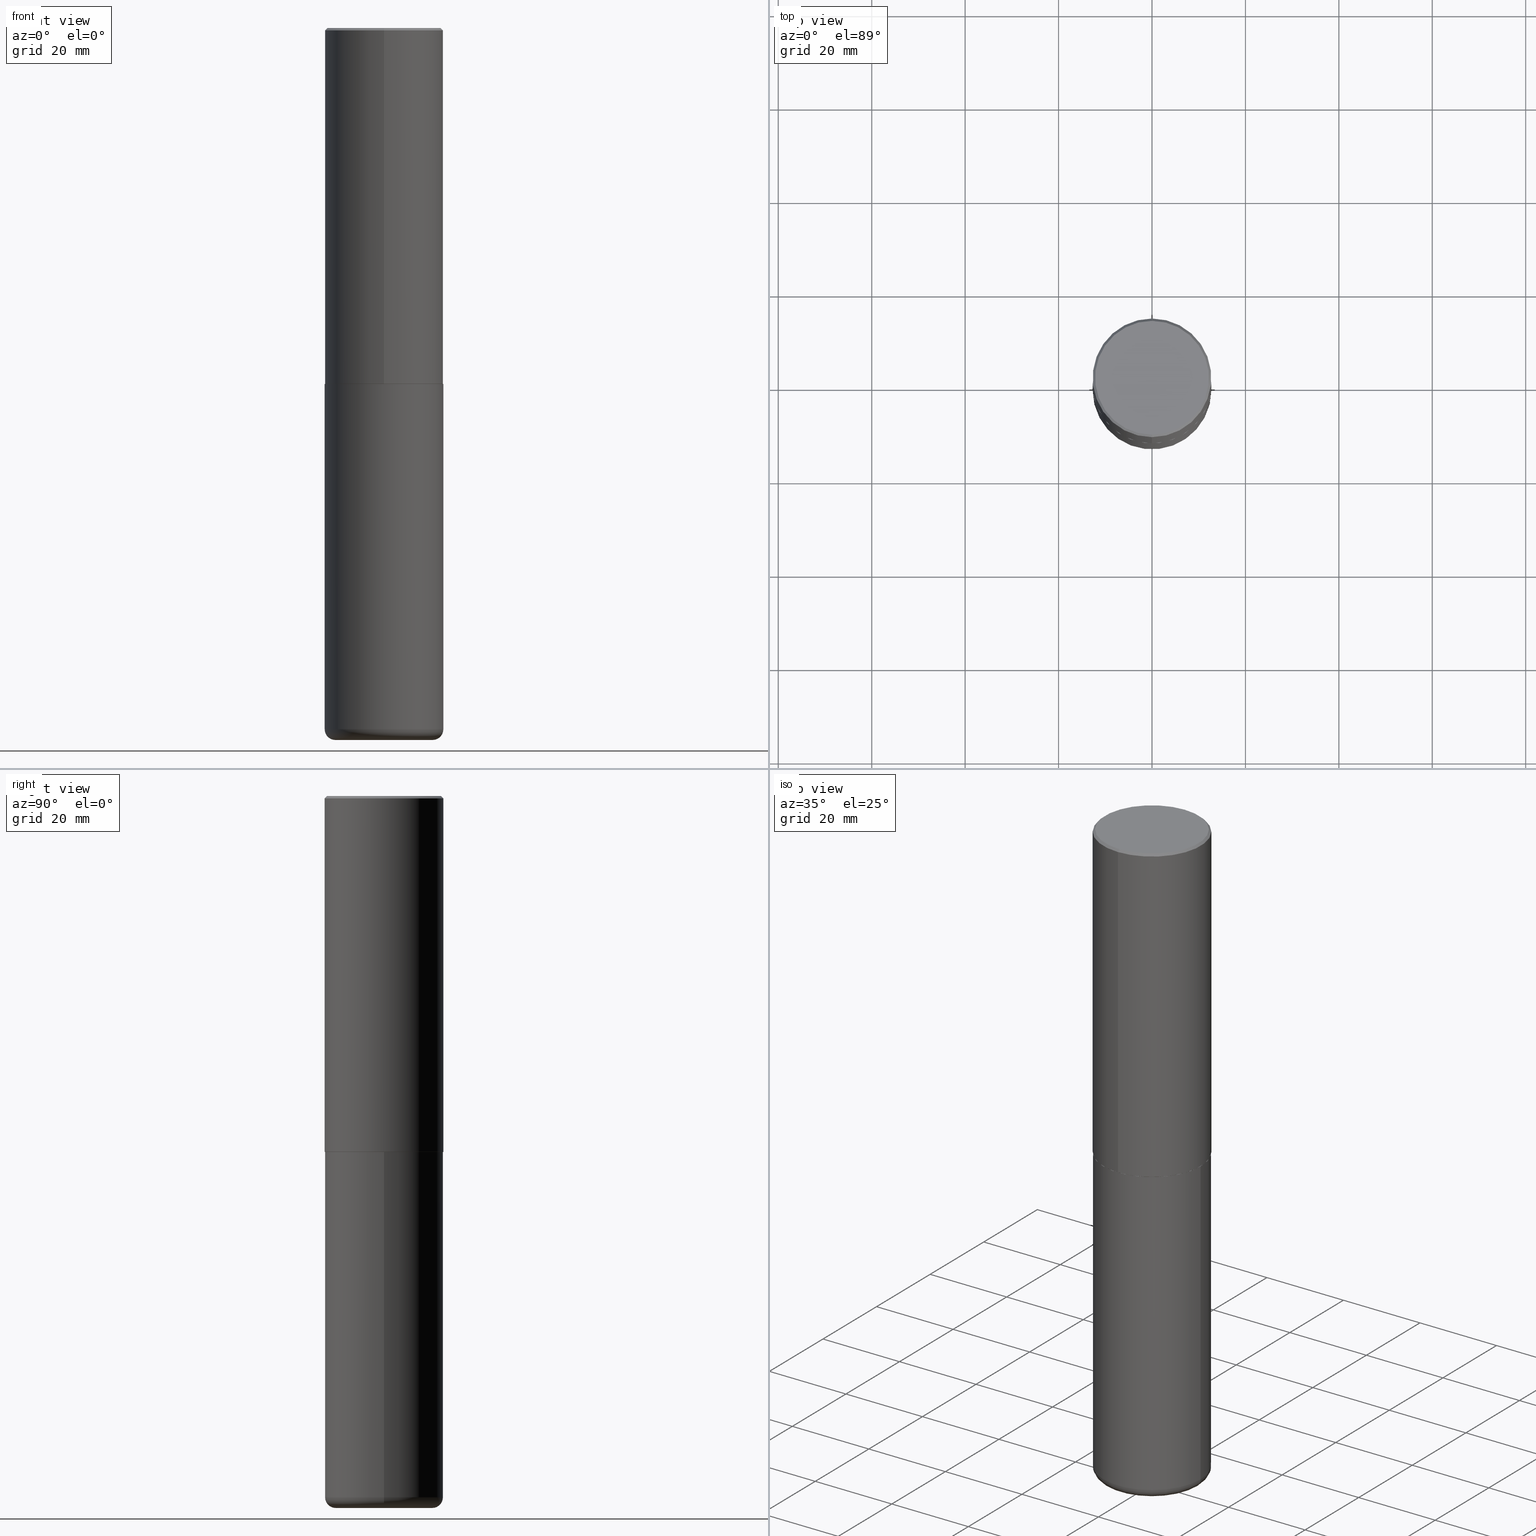
[diagram: canonical four-view strip — front | top / right | iso, engineering-drawing reading convention]
A machine part, canonical four-view strip (front | top / right | iso — engineering-drawing reading convention). The complete STEP part file that produces these views, byte-faithful:
ISO-10303-21;
HEADER;
FILE_DESCRIPTION (( 'STEP AP203' ),
    '1' );
FILE_NAME ('37725.STEP',
    '2024-03-02T09:27:18',
    ( '' ),
    ( '' ),
    'SwSTEP 2.0',
    'SolidWorks 2023',
    '' );
FILE_SCHEMA (( 'CONFIG_CONTROL_DESIGN' ));
ENDSEC;

DATA;
#1 = PERSON_AND_ORGANIZATION ( #269, #66 ) ;
#2 = PLANE ( 'NONE',  #258 ) ;
#3 = AXIS2_PLACEMENT_3D ( 'NONE', #388, #414, #418 ) ;
#4 = CIRCLE ( 'NONE', #352, 0.4799999999999999267 ) ;
#5 = DIRECTION ( 'NONE',  ( -6.982962677686265922E-15, -1.000000000000000000, 3.284787166730577015E-15 ) ) ;
#6 = EDGE_CURVE ( 'NONE', #122, #402, #61, .T. ) ;
#7 = DIRECTION ( 'NONE',  ( -2.444898033699712212E-29, 3.492298717528625990E-15, 1.000000000000000000 ) ) ;
#8 = DIRECTION ( 'NONE',  ( -2.444898033699712212E-29, 3.492298717528625990E-15, 1.000000000000000000 ) ) ;
#9 = APPROVAL ( #351, 'UNSPECIFIED' ) ;
#10 = AXIS2_PLACEMENT_3D ( 'NONE', #385, #294, #347 ) ;
#11 = DIRECTION ( 'NONE',  ( 6.982962677686265922E-15, 1.000000000000000000, -3.492298717528626385E-15 ) ) ;
#12 = LOCAL_TIME ( 4, 27, 18.00000000000000000, #191 ) ;
#13 = CARTESIAN_POINT ( 'NONE',  ( -0.4099999999999999756, -1.772142949594657767E-14, -5.910000000000000142 ) ) ;
#14 = LINE ( 'NONE', #107, #204 ) ;
#15 = CC_DESIGN_PERSON_AND_ORGANIZATION_ASSIGNMENT ( #183, #315, ( #247 ) ) ;
#16 = APPLICATION_PROTOCOL_DEFINITION ( 'international standard', 'config_control_design', 1994, #175 ) ;
#17 = CIRCLE ( 'NONE', #236, 0.4099999999999999756 ) ;
#18 = ORIENTED_EDGE ( 'NONE', *, *, #158, .T. ) ;
#19 = CIRCLE ( 'NONE', #259, 0.5000000000000000000 ) ;
#20 = DIRECTION ( 'NONE',  ( -2.445468806185136877E-29, 3.491481338843145188E-15, 1.000000000000000000 ) ) ;
#21 = ORIENTED_EDGE ( 'NONE', *, *, #368, .F. ) ;
#22 = EDGE_LOOP ( 'NONE', ( #240, #249, #211, #210 ) ) ;
#23 = ORIENTED_EDGE ( 'NONE', *, *, #138, .T. ) ;
#24 = APPROVAL_PERSON_ORGANIZATION ( #307, #9, #31 ) ;
#25 = CARTESIAN_POINT ( 'NONE',  ( 3.491481338843133355E-15, 0.4999999999999999445, -0.02000000000000185310 ) ) ;
#26 = ORIENTED_EDGE ( 'NONE', *, *, #231, .F. ) ;
#27 = DIRECTION ( 'NONE',  ( 1.000000000000000000, -6.982962677686266711E-15, 0.000000000000000000 ) ) ;
#28 = EDGE_CURVE ( 'NONE', #376, #152, #300, .T. ) ;
#29 = APPROVAL_ROLE ( '' ) ;
#30 = CARTESIAN_POINT ( 'NONE',  ( 4.889796067399450837E-31, -6.984597435057287381E-17, -0.02000000000000010797 ) ) ;
#31 = APPROVAL_ROLE ( '' ) ;
#32 = DIRECTION ( 'NONE',  ( -6.982962677686265922E-15, -1.000000000000000000, 3.491643216902136408E-15 ) ) ;
#33 = PERSON_AND_ORGANIZATION_ROLE ( 'creator' ) ;
#34 = DIRECTION ( 'NONE',  ( -2.444898033699712212E-29, 3.492298717528625990E-15, 1.000000000000000000 ) ) ;
#35 = EDGE_CURVE ( 'NONE', #118, #196, #252, .T. ) ;
#36 = SECURITY_CLASSIFICATION_LEVEL ( 'unclassified' ) ;
#37 = CARTESIAN_POINT ( 'NONE',  ( 3.421651712066270057E-15, 0.4799999999999999267, -1.573466742882299844E-15 ) ) ;
#38 = CIRCLE ( 'NONE', #320, 0.09000000000000020484 ) ;
#39 = DIRECTION ( 'NONE',  ( -6.982962677686266711E-15, -1.000000000000000000, 3.278217592397114284E-15 ) ) ;
#40 = DIRECTION ( 'NONE',  ( -6.982962677686266711E-15, -1.000000000000000000, 3.278217592397114284E-15 ) ) ;
#41 = APPROVAL ( #386, 'UNSPECIFIED' ) ;
#42 = CARTESIAN_POINT ( 'NONE',  ( -3.430248998885764992E-15, -0.5000000000000001110, -0.01999999999999835937 ) ) ;
#43 = AXIS2_PLACEMENT_3D ( 'NONE', #132, #220, #5 ) ;
#44 = DIRECTION ( 'NONE',  ( -4.937700262165728178E-15, -0.7071067811867141062, 0.7071067811863809283 ) ) ;
#45 = LOCAL_TIME ( 4, 27, 18.00000000000000000, #215 ) ;
#46 = CARTESIAN_POINT ( 'NONE',  ( 7.336406418555409790E-29, -1.047444401652943635E-14, -3.000000000000000444 ) ) ;
#47 = UNCERTAINTY_MEASURE_WITH_UNIT (LENGTH_MEASURE( 1.000000000000000082E-05 ), #54, 'distance_accuracy_value', 'NONE');
#48 = EDGE_LOOP ( 'NONE', ( #113, #93, #274, #276 ) ) ;
#49 = CARTESIAN_POINT ( 'NONE',  ( 0.000000000000000000, 0.000000000000000000, 0.000000000000000000 ) ) ;
#50 = CIRCLE ( 'NONE', #380, 0.4799999999999999267 ) ;
#51 = ORIENTED_EDGE ( 'NONE', *, *, #327, .F. ) ;
#52 = APPROVAL_PERSON_ORGANIZATION ( #251, #41, #29 ) ;
#53 = ORIENTED_EDGE ( 'NONE', *, *, #6, .F. ) ;
#54 =( CONVERSION_BASED_UNIT ( 'INCH', #88 ) LENGTH_UNIT ( ) NAMED_UNIT ( #397 ) );
#55 = VERTEX_POINT ( 'NONE', #253 ) ;
#56 = DIRECTION ( 'NONE',  ( -2.444898033699712212E-29, 3.492298717528625990E-15, 1.000000000000000000 ) ) ;
#57 = VERTEX_POINT ( 'NONE', #256 ) ;
#58 = AXIS2_PLACEMENT_3D ( 'NONE', #255, #265, #167 ) ;
#59 = CIRCLE ( 'NONE', #271, 0.4989999999999999991 ) ;
#60 = PERSON_AND_ORGANIZATION ( #269, #66 ) ;
#61 = LINE ( 'NONE', #224, #345 ) ;
#62 = SHAPE_DEFINITION_REPRESENTATION ( #370, #306 ) ;
#63 = CARTESIAN_POINT ( 'NONE',  ( 0.4099999999999999756, -2.381190273091024584E-14, -6.000000000000000888 ) ) ;
#64 = DIRECTION ( 'NONE',  ( -2.444898033699711371E-29, 3.492298717528626385E-15, 1.000000000000000000 ) ) ;
#65 = CONICAL_SURFACE ( 'NONE', #78, 0.4989999999999999991, 0.7853981633976873100 ) ;
#66 = ORGANIZATION ( 'UNSPECIFIED', 'UNSPECIFIED', '' ) ;
#67 = PERSON_AND_ORGANIZATION ( #269, #66 ) ;
#68 = DIRECTION ( 'NONE',  ( -2.445468806185136597E-29, 3.491481338843145583E-15, 1.000000000000000000 ) ) ;
#69 = ADVANCED_FACE ( 'NONE', ( #70 ), #97, .T. ) ;
#70 = FACE_OUTER_BOUND ( 'NONE', #208, .T. ) ;
#71 = DIRECTION ( 'NONE',  ( -2.444898033699712212E-29, 3.492298717528625990E-15, 1.000000000000000000 ) ) ;
#72 = CIRCLE ( 'NONE', #286, 0.5000000000000000000 ) ;
#73 = LOCAL_TIME ( 4, 27, 18.00000000000000000, #292 ) ;
#74 = ADVANCED_FACE ( 'NONE', ( #222 ), #2, .F. ) ;
#75 = DIRECTION ( 'NONE',  ( -2.444898033699712212E-29, 3.492298717528625990E-15, 1.000000000000000000 ) ) ;
#76 = FACE_OUTER_BOUND ( 'NONE', #146, .T. ) ;
#77 = FACE_OUTER_BOUND ( 'NONE', #344, .T. ) ;
#78 = AXIS2_PLACEMENT_3D ( 'NONE', #357, #296, #392 ) ;
#79 = DIRECTION ( 'NONE',  ( 1.000000000000000000, -6.982962677686266711E-15, 0.000000000000000000 ) ) ;
#80 = SECURITY_CLASSIFICATION ( '', '', #36 ) ;
#81 = DIRECTION ( 'NONE',  ( 1.000000000000000000, -6.982962677686268288E-15, 4.883557194083113462E-29 ) ) ;
#82 = LINE ( 'NONE', #398, #329 ) ;
#83 = VERTEX_POINT ( 'NONE', #349 ) ;
#84 = APPLICATION_CONTEXT ( 'configuration controlled 3d designs of mechanical parts and assemblies' ) ;
#85 = CARTESIAN_POINT ( 'NONE',  ( 1.445272064455415567E-28, -2.063465471256298944E-14, -5.910000000000000142 ) ) ;
#86 = EDGE_CURVE ( 'NONE', #57, #281, #229, .T. ) ;
#87 = ORIENTED_EDGE ( 'NONE', *, *, #415, .T. ) ;
#88 = LENGTH_MEASURE_WITH_UNIT ( LENGTH_MEASURE( 0.02539999999999999897 ), #278 );
#89 = ORIENTED_EDGE ( 'NONE', *, *, #291, .F. ) ;
#90 = DIRECTION ( 'NONE',  ( 0.000000000000000000, 0.000000000000000000, 1.000000000000000000 ) ) ;
#91 = VERTEX_POINT ( 'NONE', #284 ) ;
#92 = EDGE_CURVE ( 'NONE', #402, #144, #387, .T. ) ;
#93 = ORIENTED_EDGE ( 'NONE', *, *, #327, .T. ) ;
#94 = VECTOR ( 'NONE', #309, 39.37007874015748143 ) ;
#95 = COORDINATED_UNIVERSAL_TIME_OFFSET ( 5, 0, .BEHIND. ) ;
#96 = FACE_OUTER_BOUND ( 'NONE', #242, .T. ) ;
#97 = CYLINDRICAL_SURFACE ( 'NONE', #193, 0.5000000000000000000 ) ;
#98 = DATE_AND_TIME ( #280, #73 ) ;
#99 = ORIENTED_EDGE ( 'NONE', *, *, #333, .F. ) ;
#100 = ADVANCED_FACE ( 'NONE', ( #130 ), #209, .T. ) ;
#101 = AXIS2_PLACEMENT_3D ( 'NONE', #30, #34, #32 ) ;
#102 = ORIENTED_EDGE ( 'NONE', *, *, #168, .T. ) ;
#103 = CARTESIAN_POINT ( 'NONE',  ( 3.552713678800501718E-15, 0.5000000000000001110, -1.746149358764313390E-15 ) ) ;
#104 = DIRECTION ( 'NONE',  ( 2.444898033699712212E-29, -3.492298717528625990E-15, -1.000000000000000000 ) ) ;
#105 = CC_DESIGN_APPROVAL ( #41, ( #80 ) ) ;
#106 = DIRECTION ( 'NONE',  ( 6.982962677686265922E-15, 1.000000000000000000, -3.491643216902136408E-15 ) ) ;
#107 = CARTESIAN_POINT ( 'NONE',  ( 0.5000000000000000000, -3.491481338843133355E-15, 2.438088387897967896E-29 ) ) ;
#108 = DIRECTION ( 'NONE',  ( -6.982962677686265922E-15, -1.000000000000000000, 3.492298717528625990E-15 ) ) ;
#109 = CC_DESIGN_PERSON_AND_ORGANIZATION_ASSIGNMENT ( #195, #325, ( #305 ) ) ;
#110 = AXIS2_PLACEMENT_3D ( 'NONE', #321, #384, #27 ) ;
#111 = CONICAL_SURFACE ( 'NONE', #157, 0.4989999999999999991, 0.7853981633976873100 ) ;
#112 = CARTESIAN_POINT ( 'NONE',  ( 4.889796067399450837E-31, -6.984597435057287381E-17, -0.02000000000000010797 ) ) ;
#113 = ORIENTED_EDGE ( 'NONE', *, *, #314, .T. ) ;
#114 = CC_DESIGN_PERSON_AND_ORGANIZATION_ASSIGNMENT ( #382, #285, ( #182 ) ) ;
#115 = CARTESIAN_POINT ( 'NONE',  ( 1.445272064455415567E-28, -2.063465471256298944E-14, -5.910000000000000142 ) ) ;
#116 = ORIENTED_EDGE ( 'NONE', *, *, #291, .T. ) ;
#117 = DIRECTION ( 'NONE',  ( -4.851104656540946131E-15, -0.7071067811865473507, -0.7071067811865476838 ) ) ;
#118 = VERTEX_POINT ( 'NONE', #63 ) ;
#119 = AXIS2_PLACEMENT_3D ( 'NONE', #85, #245, #81 ) ;
#120 = ORIENTED_EDGE ( 'NONE', *, *, #338, .F. ) ;
#121 = ADVANCED_FACE ( 'NONE', ( #326 ), #353, .T. ) ;
#122 = VERTEX_POINT ( 'NONE', #37 ) ;
#123 = CALENDAR_DATE ( 2024, 2, 3 ) ;
#124 = ORIENTED_EDGE ( 'NONE', *, *, #246, .T. ) ;
#125 = CC_DESIGN_APPROVAL ( #378, ( #305 ) ) ;
#126 = DIRECTION ( 'NONE',  ( -2.445468806185136597E-29, 3.491481338843145583E-15, 1.000000000000000000 ) ) ;
#127 = ADVANCED_FACE ( 'NONE', ( #96 ), #163, .T. ) ;
#128 = FACE_OUTER_BOUND ( 'NONE', #22, .T. ) ;
#129 = APPROVAL_ROLE ( '' ) ;
#130 = FACE_OUTER_BOUND ( 'NONE', #377, .T. ) ;
#131 = AXIS2_PLACEMENT_3D ( 'NONE', #267, #330, #40 ) ;
#132 = CARTESIAN_POINT ( 'NONE',  ( 7.334694101099137475E-29, -1.047689615258587837E-14, -3.000000000000000444 ) ) ;
#133 = EDGE_CURVE ( 'NONE', #83, #390, #366, .T. ) ;
#134 = CARTESIAN_POINT ( 'NONE',  ( 1.467281283711081958E-28, -2.094888803305887271E-14, -6.000000000000000888 ) ) ;
#135 = CARTESIAN_POINT ( 'NONE',  ( 3.351822085289407153E-15, 0.4799999999999999267, -1.624885063648019971E-15 ) ) ;
#136 = AXIS2_PLACEMENT_3D ( 'NONE', #165, #104, #106 ) ;
#137 = PLANE ( 'NONE',  #156 ) ;
#138 = EDGE_CURVE ( 'NONE', #196, #118, #17, .T. ) ;
#139 = DIRECTION ( 'NONE',  ( -1.000000000000000000, 6.982962677686265922E-15, -4.876176775795935793E-29 ) ) ;
#140 = DIRECTION ( 'NONE',  ( 2.444898033699711371E-29, -3.492298717528626385E-15, -1.000000000000000000 ) ) ;
#141 = VERTEX_POINT ( 'NONE', #288 ) ;
#142 = ADVANCED_FACE ( 'NONE', ( #128 ), #164, .T. ) ;
#143 = DIRECTION ( 'NONE',  ( -2.444898033699712212E-29, 3.492298717528625990E-15, 1.000000000000000000 ) ) ;
#144 = VERTEX_POINT ( 'NONE', #42 ) ;
#145 = DIRECTION ( 'NONE',  ( -1.000000000000000000, 6.982962677686265922E-15, -4.876176775795935793E-29 ) ) ;
#146 = EDGE_LOOP ( 'NONE', ( #102, #250 ) ) ;
#147 = DIRECTION ( 'NONE',  ( 1.000000000000000000, -6.982962677686262766E-15, 0.000000000000000000 ) ) ;
#148 = VECTOR ( 'NONE', #171, 39.37007874015748143 ) ;
#149 = EDGE_LOOP ( 'NONE', ( #339, #362 ) ) ;
#150 = CARTESIAN_POINT ( 'NONE',  ( 3.545608251442972496E-15, 0.4989999999999895630, -3.000000000000001776 ) ) ;
#151 = PRODUCT_RELATED_PRODUCT_CATEGORY ( 'detail', '', ( #247 ) ) ;
#152 = VERTEX_POINT ( 'NONE', #200 ) ;
#153 = APPROVAL_DATE_TIME ( #98, #9 ) ;
#154 = DIRECTION ( 'NONE',  ( 1.000000000000000000, -6.982962677686271444E-15, 0.000000000000000000 ) ) ;
#155 = DIRECTION ( 'NONE',  ( -2.445468806185136597E-29, 3.491481338843145583E-15, 1.000000000000000000 ) ) ;
#156 = AXIS2_PLACEMENT_3D ( 'NONE', #135, #140, #11 ) ;
#157 = AXIS2_PLACEMENT_3D ( 'NONE', #332, #75, #166 ) ;
#158 = EDGE_CURVE ( 'NONE', #390, #55, #334, .T. ) ;
#159 = CALENDAR_DATE ( 2024, 2, 3 ) ;
#160 = CARTESIAN_POINT ( 'NONE',  ( 7.334694101099137475E-29, -1.047689615258587837E-14, -3.000000000000000444 ) ) ;
#161 = COORDINATED_UNIVERSAL_TIME_OFFSET ( 5, 0, .BEHIND. ) ;
#162 = ADVANCED_FACE ( 'NONE', ( #228 ), #65, .T. ) ;
#163 = CYLINDRICAL_SURFACE ( 'NONE', #10, 0.5000000000000001110 ) ;
#164 = CONICAL_SURFACE ( 'NONE', #58, 0.5000000000000000000, 0.7853981633974446153 ) ;
#165 = CARTESIAN_POINT ( 'NONE',  ( 4.889796067399450837E-31, -6.984597435057287381E-17, -0.02000000000000010797 ) ) ;
#166 = DIRECTION ( 'NONE',  ( -6.982962677686265922E-15, -1.000000000000000000, 3.284787166730577015E-15 ) ) ;
#167 = DIRECTION ( 'NONE',  ( 6.982962677686265922E-15, 1.000000000000000000, -3.491643216902136408E-15 ) ) ;
#168 = EDGE_CURVE ( 'NONE', #122, #91, #50, .T. ) ;
#169 = AXIS2_PLACEMENT_3D ( 'NONE', #394, #299, #201 ) ;
#170 = LOCAL_TIME ( 4, 27, 18.00000000000000000, #161 ) ;
#171 = DIRECTION ( 'NONE',  ( -2.444898033699711931E-29, 3.492298717528626385E-15, 1.000000000000000000 ) ) ;
#172 = CARTESIAN_POINT ( 'NONE',  ( -0.4099999999999999756, -1.755880192510247630E-14, -6.000000000000000888 ) ) ;
#173 =( NAMED_UNIT ( * ) PLANE_ANGLE_UNIT ( ) SI_UNIT ( $, .RADIAN. ) );
#174 = CC_DESIGN_PERSON_AND_ORGANIZATION_ASSIGNMENT ( #1, #319, ( #80 ) ) ;
#175 = APPLICATION_CONTEXT ( 'configuration controlled 3d designs of mechanical parts and assemblies' ) ;
#176 = EDGE_LOOP ( 'NONE', ( #343, #87, #379, #53 ) ) ;
#177 = AXIS2_PLACEMENT_3D ( 'NONE', #49, #56, #272 ) ;
#178 = ORIENTED_EDGE ( 'NONE', *, *, #35, .T. ) ;
#179 = LINE ( 'NONE', #150, #94 ) ;
#180 = ORIENTED_EDGE ( 'NONE', *, *, #235, .F. ) ;
#181 = ORIENTED_EDGE ( 'NONE', *, *, #35, .F. ) ;
#182 = PRODUCT_DEFINITION ( 'UNKNOWN', '', #305, #202 ) ;
#183 = PERSON_AND_ORGANIZATION ( #269, #66 ) ;
#184 = AXIS2_PLACEMENT_3D ( 'NONE', #134, #328, #139 ) ;
#185 = EDGE_LOOP ( 'NONE', ( #178, #116, #406, #308 ) ) ;
#186 = DATE_AND_TIME ( #411, #12 ) ;
#187 = DIRECTION ( 'NONE',  ( 1.000000000000000000, -6.982962677686266711E-15, 4.876176775795935793E-29 ) ) ;
#188 = MANIFOLD_SOLID_BREP ( 'Body-Move/Copy2[1]', #313 ) ;
#189 = CARTESIAN_POINT ( 'NONE',  ( 1.467281283711081958E-28, -2.094888803305887271E-14, -6.000000000000000888 ) ) ;
#190 = EDGE_CURVE ( 'NONE', #281, #57, #72, .T. ) ;
#191 = COORDINATED_UNIVERSAL_TIME_OFFSET ( 5, 0, .BEHIND. ) ;
#192 = EDGE_LOOP ( 'NONE', ( #99, #293, #310, #410 ) ) ;
#193 = AXIS2_PLACEMENT_3D ( 'NONE', #355, #68, #187 ) ;
#194 = AXIS2_PLACEMENT_3D ( 'NONE', #115, #408, #147 ) ;
#195 = PERSON_AND_ORGANIZATION ( #269, #66 ) ;
#196 = VERTEX_POINT ( 'NONE', #172 ) ;
#197 = DIRECTION ( 'NONE',  ( 1.000000000000000000, -6.982962677686268288E-15, 4.883557194083113462E-29 ) ) ;
#198 = DIRECTION ( 'NONE',  ( -1.000000000000000000, 7.105427357600996337E-15, 0.000000000000000000 ) ) ;
#199 = CLOSED_SHELL ( 'NONE', ( #302, #409, #297, #142, #127, #162, #74, #206 ) ) ;
#200 = CARTESIAN_POINT ( 'NONE',  ( -0.5000000000000001110, -1.708194103376248851E-14, -5.910000000000000142 ) ) ;
#201 = DIRECTION ( 'NONE',  ( 1.000000000000000000, -6.982962677686252511E-15, 0.000000000000000000 ) ) ;
#202 = DESIGN_CONTEXT ( 'detailed design', #84, 'design' ) ;
#203 = DIRECTION ( 'NONE',  ( 7.105427357601001859E-15, 1.000000000000000000, -3.491481338843145583E-15 ) ) ;
#204 = VECTOR ( 'NONE', #301, 39.37007874015748143 ) ;
#205 = DIRECTION ( 'NONE',  ( -2.445468806185136597E-29, 3.491481338843145583E-15, 1.000000000000000000 ) ) ;
#206 = ADVANCED_FACE ( 'NONE', ( #76 ), #137, .F. ) ;
#207 = PLANE ( 'NONE',  #287 ) ;
#208 = EDGE_LOOP ( 'NONE', ( #312, #336, #412, #26 ) ) ;
#209 = TOROIDAL_SURFACE ( 'NONE', #264, 0.4099999999999999756, 0.09000000000000020484 ) ;
#210 = ORIENTED_EDGE ( 'NONE', *, *, #92, .T. ) ;
#211 = ORIENTED_EDGE ( 'NONE', *, *, #6, .T. ) ;
#212 = EDGE_CURVE ( 'NONE', #118, #376, #243, .T. ) ;
#213 = DIRECTION ( 'NONE',  ( 1.000000000000000000, 0.000000000000000000, 0.000000000000000000 ) ) ;
#214 = EDGE_LOOP ( 'NONE', ( #273, #124, #120, #304 ) ) ;
#215 = COORDINATED_UNIVERSAL_TIME_OFFSET ( 5, 0, .BEHIND. ) ;
#216 = AXIS2_PLACEMENT_3D ( 'NONE', #396, #71, #39 ) ;
#217 = CARTESIAN_POINT ( 'NONE',  ( 1.445272064455415567E-28, -2.063465471256298944E-14, -5.910000000000000142 ) ) ;
#218 = EDGE_CURVE ( 'NONE', #55, #144, #303, .T. ) ;
#219 = APPROVAL_DATE_TIME ( #283, #378 ) ;
#220 = DIRECTION ( 'NONE',  ( -2.444898033699712212E-29, 3.492298717528625990E-15, 1.000000000000000000 ) ) ;
#221 = CALENDAR_DATE ( 2024, 2, 3 ) ;
#222 = FACE_OUTER_BOUND ( 'NONE', #316, .T. ) ;
#223 = DATE_TIME_ROLE ( 'creation_date' ) ;
#224 = CARTESIAN_POINT ( 'NONE',  ( 3.491481338843133355E-15, 0.4999999999999999445, -0.02000000000000185310 ) ) ;
#225 = DIRECTION ( 'NONE',  ( 4.937700262164529898E-15, 0.7071067811865424657, -0.7071067811865525687 ) ) ;
#226 = CC_DESIGN_PERSON_AND_ORGANIZATION_ASSIGNMENT ( #67, #33, ( #305 ) ) ;
#227 = CARTESIAN_POINT ( 'NONE',  ( -0.5000000000000000000, -1.200183568574571118E-14, -3.000000000000000444 ) ) ;
#228 = FACE_OUTER_BOUND ( 'NONE', #373, .T. ) ;
#229 = CIRCLE ( 'NONE', #110, 0.5000000000000000000 ) ;
#230 = CC_DESIGN_APPROVAL ( #9, ( #182 ) ) ;
#231 = EDGE_CURVE ( 'NONE', #376, #57, #14, .T. ) ;
#232 = DIRECTION ( 'NONE',  ( -6.982962677686265922E-15, -1.000000000000000000, 3.284787166730577015E-15 ) ) ;
#233 = LINE ( 'NONE', #103, #399 ) ;
#234 = CARTESIAN_POINT ( 'NONE',  ( -3.484498376165373188E-15, -0.4990000000000104352, -2.999999999999998668 ) ) ;
#235 = EDGE_CURVE ( 'NONE', #141, #55, #365, .T. ) ;
#236 = AXIS2_PLACEMENT_3D ( 'NONE', #189, #155, #260 ) ;
#237 = CIRCLE ( 'NONE', #216, 0.5000000000000002220 ) ;
#238 = CARTESIAN_POINT ( 'NONE',  ( 0.5000000000000001110, -2.412613605140612280E-14, -5.910000000000000142 ) ) ;
#239 = CARTESIAN_POINT ( 'NONE',  ( 0.000000000000000000, 0.000000000000000000, 0.000000000000000000 ) ) ;
#240 = ORIENTED_EDGE ( 'NONE', *, *, #415, .F. ) ;
#241 = DIRECTION ( 'NONE',  ( -6.982962677686265922E-15, -1.000000000000000000, 3.491643216902136408E-15 ) ) ;
#242 = EDGE_LOOP ( 'NONE', ( #248, #290, #342, #395 ) ) ;
#243 = CIRCLE ( 'NONE', #169, 0.09000000000000020484 ) ;
#244 = CONICAL_SURFACE ( 'NONE', #136, 0.5000000000000000000, 0.7853981633974446153 ) ;
#245 = DIRECTION ( 'NONE',  ( -2.445468806185136597E-29, 3.491481338843145583E-15, 1.000000000000000000 ) ) ;
#246 = EDGE_CURVE ( 'NONE', #141, #402, #233, .T. ) ;
#247 = PRODUCT ( '37725', '37725', '', ( #311 ) ) ;
#248 = ORIENTED_EDGE ( 'NONE', *, *, #246, .F. ) ;
#249 = ORIENTED_EDGE ( 'NONE', *, *, #168, .F. ) ;
#250 = ORIENTED_EDGE ( 'NONE', *, *, #262, .T. ) ;
#251 = PERSON_AND_ORGANIZATION ( #269, #66 ) ;
#252 = CIRCLE ( 'NONE', #358, 0.4099999999999999756 ) ;
#253 = CARTESIAN_POINT ( 'NONE',  ( -3.491481338843061569E-15, -0.5000000000000107692, -2.998999999999998778 ) ) ;
#254 = CARTESIAN_POINT ( 'NONE',  ( 1.445272064455415567E-28, -2.063465471256298944E-14, -5.910000000000000142 ) ) ;
#255 = CARTESIAN_POINT ( 'NONE',  ( 4.889796067399450837E-31, -6.984597435057287381E-17, -0.02000000000000010797 ) ) ;
#256 = CARTESIAN_POINT ( 'NONE',  ( 0.5000000000000000000, -1.396592535537257129E-14, -3.000000000000000444 ) ) ;
#257 = ADVANCED_FACE ( 'NONE', ( #77 ), #263, .T. ) ;
#258 = AXIS2_PLACEMENT_3D ( 'NONE', #160, #64, #317 ) ;
#259 = AXIS2_PLACEMENT_3D ( 'NONE', #112, #143, #241 ) ;
#260 = DIRECTION ( 'NONE',  ( 1.000000000000000000, -6.982962677686271444E-15, 0.000000000000000000 ) ) ;
#261 = CARTESIAN_POINT ( 'NONE',  ( -3.491481338843133750E-15, -0.5000000000000001110, 1.746149358764313390E-15 ) ) ;
#262 = EDGE_CURVE ( 'NONE', #91, #122, #4, .T. ) ;
#263 = PLANE ( 'NONE',  #184 ) ;
#264 = AXIS2_PLACEMENT_3D ( 'NONE', #217, #383, #197 ) ;
#265 = DIRECTION ( 'NONE',  ( 2.444898033699712212E-29, -3.492298717528625990E-15, -1.000000000000000000 ) ) ;
#266 = ORIENTED_EDGE ( 'NONE', *, *, #138, .F. ) ;
#267 = CARTESIAN_POINT ( 'NONE',  ( 7.332249203065438921E-29, -1.047340385386834930E-14, -2.999000000000000554 ) ) ;
#268 = DIRECTION ( 'NONE',  ( -2.444898033699712212E-29, 3.492298717528625990E-15, 1.000000000000000000 ) ) ;
#269 = PERSON ( 'UNSPECIFIED', 'UNSPECIFIED', 'UNSPECIFIED', ('UNSPECIFIED'), ('UNSPECIFIED'), ('UNSPECIFIED') ) ;
#270 = AXIS2_PLACEMENT_3D ( 'NONE', #254, #323, #318 ) ;
#271 = AXIS2_PLACEMENT_3D ( 'NONE', #298, #8, #232 ) ;
#272 = DIRECTION ( 'NONE',  ( -6.982962677686265922E-15, -1.000000000000000000, 3.492298717528625990E-15 ) ) ;
#273 = ORIENTED_EDGE ( 'NONE', *, *, #282, .T. ) ;
#274 = ORIENTED_EDGE ( 'NONE', *, *, #282, .F. ) ;
#275 = FACE_OUTER_BOUND ( 'NONE', #214, .T. ) ;
#276 = ORIENTED_EDGE ( 'NONE', *, *, #158, .F. ) ;
#277 = VECTOR ( 'NONE', #44, 39.37007874015748143 ) ;
#278 =( LENGTH_UNIT ( ) NAMED_UNIT ( * ) SI_UNIT ( $, .METRE. ) );
#279 = ORIENTED_EDGE ( 'NONE', *, *, #133, .F. ) ;
#280 = CALENDAR_DATE ( 2024, 2, 3 ) ;
#281 = VERTEX_POINT ( 'NONE', #227 ) ;
#282 = EDGE_CURVE ( 'NONE', #55, #141, #237, .T. ) ;
#283 = DATE_AND_TIME ( #221, #45 ) ;
#284 = CARTESIAN_POINT ( 'NONE',  ( -3.361644018908049661E-15, -0.4799999999999999267, 1.779140025945180744E-15 ) ) ;
#285 = PERSON_AND_ORGANIZATION_ROLE ( 'creator' ) ;
#286 = AXIS2_PLACEMENT_3D ( 'NONE', #46, #205, #79 ) ;
#287 = AXIS2_PLACEMENT_3D ( 'NONE', #337, #375, #145 ) ;
#288 = CARTESIAN_POINT ( 'NONE',  ( 3.552713678800539584E-15, 0.4999999999999898970, -2.999000000000001886 ) ) ;
#289 = DATE_AND_TIME ( #123, #393 ) ;
#290 = ORIENTED_EDGE ( 'NONE', *, *, #235, .T. ) ;
#291 = EDGE_CURVE ( 'NONE', #196, #152, #38, .T. ) ;
#292 = COORDINATED_UNIVERSAL_TIME_OFFSET ( 5, 0, .BEHIND. ) ;
#293 = ORIENTED_EDGE ( 'NONE', *, *, #368, .T. ) ;
#294 = DIRECTION ( 'NONE',  ( -2.444898033699712212E-29, 3.492298717528625990E-15, 1.000000000000000000 ) ) ;
#295 = TOROIDAL_SURFACE ( 'NONE', #119, 0.4099999999999999756, 0.09000000000000020484 ) ;
#296 = DIRECTION ( 'NONE',  ( -2.444898033699712212E-29, 3.492298717528625990E-15, 1.000000000000000000 ) ) ;
#297 = ADVANCED_FACE ( 'NONE', ( #359 ), #244, .T. ) ;
#298 = CARTESIAN_POINT ( 'NONE',  ( 7.334694101099137475E-29, -1.047689615258587837E-14, -3.000000000000000444 ) ) ;
#299 = DIRECTION ( 'NONE',  ( -6.982962677686266711E-15, -1.000000000000000000, 3.491481338843145583E-15 ) ) ;
#300 = CIRCLE ( 'NONE', #270, 0.5000000000000000000 ) ;
#301 = DIRECTION ( 'NONE',  ( -2.445468806185136877E-29, 3.491481338843145188E-15, 1.000000000000000000 ) ) ;
#302 = ADVANCED_FACE ( 'NONE', ( #331 ), #111, .T. ) ;
#303 = LINE ( 'NONE', #261, #148 ) ;
#304 = ORIENTED_EDGE ( 'NONE', *, *, #218, .F. ) ;
#305 = PRODUCT_DEFINITION_FORMATION_WITH_SPECIFIED_SOURCE ( 'ANY', '', #247, .NOT_KNOWN. ) ;
#306 = ADVANCED_BREP_SHAPE_REPRESENTATION ( '37725', ( #188, #324, #374 ), #416 ) ;
#307 = PERSON_AND_ORGANIZATION ( #269, #66 ) ;
#308 = ORIENTED_EDGE ( 'NONE', *, *, #212, .F. ) ;
#309 = DIRECTION ( 'NONE',  ( 5.024295867789263036E-15, 0.7071067811867189912, 0.7071067811863760433 ) ) ;
#310 = ORIENTED_EDGE ( 'NONE', *, *, #231, .T. ) ;
#311 = MECHANICAL_CONTEXT ( 'NONE', #175, 'mechanical' ) ;
#312 = ORIENTED_EDGE ( 'NONE', *, *, #28, .T. ) ;
#313 = CLOSED_SHELL ( 'NONE', ( #69, #363, #389, #121, #100, #257 ) ) ;
#314 = EDGE_CURVE ( 'NONE', #390, #83, #59, .T. ) ;
#315 = PERSON_AND_ORGANIZATION_ROLE ( 'design_owner' ) ;
#316 = EDGE_LOOP ( 'NONE', ( #417, #279 ) ) ;
#317 = DIRECTION ( 'NONE',  ( -6.982962677686265922E-15, -1.000000000000000000, 3.492298717528626385E-15 ) ) ;
#318 = DIRECTION ( 'NONE',  ( 1.000000000000000000, -6.982962677686262766E-15, 0.000000000000000000 ) ) ;
#319 = PERSON_AND_ORGANIZATION_ROLE ( 'classification_officer' ) ;
#320 = AXIS2_PLACEMENT_3D ( 'NONE', #13, #203, #198 ) ;
#321 = CARTESIAN_POINT ( 'NONE',  ( 7.336406418555409790E-29, -1.047444401652943635E-14, -3.000000000000000444 ) ) ;
#322 = APPROVAL_STATUS ( 'not_yet_approved' ) ;
#323 = DIRECTION ( 'NONE',  ( -2.445468806185136597E-29, 3.491481338843145583E-15, 1.000000000000000000 ) ) ;
#324 = MANIFOLD_SOLID_BREP ( 'Body-Move/Copy2[2]', #199 ) ;
#325 = PERSON_AND_ORGANIZATION_ROLE ( 'design_supplier' ) ;
#326 = FACE_OUTER_BOUND ( 'NONE', #192, .T. ) ;
#327 = EDGE_CURVE ( 'NONE', #83, #141, #179, .T. ) ;
#328 = DIRECTION ( 'NONE',  ( 2.438088387897960049E-29, -3.491481338843145188E-15, -1.000000000000000000 ) ) ;
#329 = VECTOR ( 'NONE', #20, 39.37007874015748143 ) ;
#330 = DIRECTION ( 'NONE',  ( -2.444898033699712212E-29, 3.492298717528625990E-15, 1.000000000000000000 ) ) ;
#331 = FACE_OUTER_BOUND ( 'NONE', #48, .T. ) ;
#332 = CARTESIAN_POINT ( 'NONE',  ( 7.334694101099137475E-29, -1.047689615258587837E-14, -3.000000000000000444 ) ) ;
#333 = EDGE_CURVE ( 'NONE', #152, #281, #82, .T. ) ;
#334 = LINE ( 'NONE', #234, #277 ) ;
#335 = FACE_OUTER_BOUND ( 'NONE', #149, .T. ) ;
#336 = ORIENTED_EDGE ( 'NONE', *, *, #333, .T. ) ;
#337 = CARTESIAN_POINT ( 'NONE',  ( 7.336406418555409790E-29, -1.047444401652943635E-14, -3.000000000000000444 ) ) ;
#338 = EDGE_CURVE ( 'NONE', #144, #402, #19, .T. ) ;
#339 = ORIENTED_EDGE ( 'NONE', *, *, #86, .T. ) ;
#340 = APPROVAL_PERSON_ORGANIZATION ( #60, #378, #129 ) ;
#341 = CYLINDRICAL_SURFACE ( 'NONE', #177, 0.5000000000000001110 ) ;
#342 = ORIENTED_EDGE ( 'NONE', *, *, #218, .T. ) ;
#343 = ORIENTED_EDGE ( 'NONE', *, *, #262, .F. ) ;
#344 = EDGE_LOOP ( 'NONE', ( #181, #266 ) ) ;
#345 = VECTOR ( 'NONE', #225, 39.37007874015748143 ) ;
#346 = CIRCLE ( 'NONE', #194, 0.5000000000000000000 ) ;
#347 = DIRECTION ( 'NONE',  ( -6.982962677686265922E-15, -1.000000000000000000, 3.492298717528625990E-15 ) ) ;
#348 = APPROVAL_DATE_TIME ( #289, #41 ) ;
#349 = CARTESIAN_POINT ( 'NONE',  ( 3.549160965121773789E-15, 0.4989999999999895630, -3.000000000000001776 ) ) ;
#350 = CARTESIAN_POINT ( 'NONE',  ( 1.467281283711081958E-28, -2.094888803305887271E-14, -6.000000000000000888 ) ) ;
#351 = APPROVAL_STATUS ( 'not_yet_approved' ) ;
#352 = AXIS2_PLACEMENT_3D ( 'NONE', #391, #7, #108 ) ;
#353 = CYLINDRICAL_SURFACE ( 'NONE', #3, 0.5000000000000000000 ) ;
#354 = DATE_TIME_ROLE ( 'classification_date' ) ;
#355 = CARTESIAN_POINT ( 'NONE',  ( 0.000000000000000000, 0.000000000000000000, 0.000000000000000000 ) ) ;
#356 = CC_DESIGN_DATE_AND_TIME_ASSIGNMENT ( #413, #354, ( #80 ) ) ;
#357 = CARTESIAN_POINT ( 'NONE',  ( 7.334694101099137475E-29, -1.047689615258587837E-14, -3.000000000000000444 ) ) ;
#358 = AXIS2_PLACEMENT_3D ( 'NONE', #350, #126, #154 ) ;
#359 = FACE_OUTER_BOUND ( 'NONE', #176, .T. ) ;
#360 = DIRECTION ( 'NONE',  ( -6.982962677686265922E-15, -1.000000000000000000, 3.492298717528625990E-15 ) ) ;
#361 = DIRECTION ( 'NONE',  ( -2.444898033699711931E-29, 3.492298717528626385E-15, 1.000000000000000000 ) ) ;
#362 = ORIENTED_EDGE ( 'NONE', *, *, #190, .T. ) ;
#363 = ADVANCED_FACE ( 'NONE', ( #372 ), #295, .T. ) ;
#364 = CARTESIAN_POINT ( 'NONE',  ( -2.514251026725007597E-45, 3.591362713352002573E-31, 1.028366415314403880E-16 ) ) ;
#365 = CIRCLE ( 'NONE', #131, 0.5000000000000002220 ) ;
#366 = CIRCLE ( 'NONE', #43, 0.4989999999999999991 ) ;
#367 = CARTESIAN_POINT ( 'NONE',  ( -3.430248998885764992E-15, -0.5000000000000001110, -0.01999999999999835937 ) ) ;
#368 = EDGE_CURVE ( 'NONE', #152, #376, #346, .T. ) ;
#369 = APPLICATION_PROTOCOL_DEFINITION ( 'international standard', 'config_control_design', 1994, #84 ) ;
#370 = PRODUCT_DEFINITION_SHAPE ( 'NONE', 'NONE',  #182 ) ;
#371 = ORIENTED_EDGE ( 'NONE', *, *, #133, .T. ) ;
#372 = FACE_OUTER_BOUND ( 'NONE', #185, .T. ) ;
#373 = EDGE_LOOP ( 'NONE', ( #51, #371, #18, #180 ) ) ;
#374 = AXIS2_PLACEMENT_3D ( 'NONE', #239, #90, #213 ) ;
#375 = DIRECTION ( 'NONE',  ( 2.438088387897960049E-29, -3.491481338843145188E-15, -1.000000000000000000 ) ) ;
#376 = VERTEX_POINT ( 'NONE', #238 ) ;
#377 = EDGE_LOOP ( 'NONE', ( #89, #23, #404, #21 ) ) ;
#378 = APPROVAL ( #322, 'UNSPECIFIED' ) ;
#379 = ORIENTED_EDGE ( 'NONE', *, *, #338, .T. ) ;
#380 = AXIS2_PLACEMENT_3D ( 'NONE', #364, #268, #360 ) ;
#381 = VECTOR ( 'NONE', #117, 39.37007874015748143 ) ;
#382 = PERSON_AND_ORGANIZATION ( #269, #66 ) ;
#383 = DIRECTION ( 'NONE',  ( -2.445468806185136597E-29, 3.491481338843145583E-15, 1.000000000000000000 ) ) ;
#384 = DIRECTION ( 'NONE',  ( -2.445468806185136597E-29, 3.491481338843145583E-15, 1.000000000000000000 ) ) ;
#385 = CARTESIAN_POINT ( 'NONE',  ( 0.000000000000000000, 0.000000000000000000, 0.000000000000000000 ) ) ;
#386 = APPROVAL_STATUS ( 'not_yet_approved' ) ;
#387 = CIRCLE ( 'NONE', #101, 0.5000000000000000000 ) ;
#388 = CARTESIAN_POINT ( 'NONE',  ( 0.000000000000000000, 0.000000000000000000, 0.000000000000000000 ) ) ;
#389 = ADVANCED_FACE ( 'NONE', ( #335 ), #207, .F. ) ;
#390 = VERTEX_POINT ( 'NONE', #401 ) ;
#391 = CARTESIAN_POINT ( 'NONE',  ( -2.514251026725007597E-45, 3.591362713352002573E-31, 1.028366415314403880E-16 ) ) ;
#392 = DIRECTION ( 'NONE',  ( -6.982962677686265922E-15, -1.000000000000000000, 3.284787166730577015E-15 ) ) ;
#393 = LOCAL_TIME ( 4, 27, 18.00000000000000000, #95 ) ;
#394 = CARTESIAN_POINT ( 'NONE',  ( 0.4099999999999999756, -2.349766941041436258E-14, -5.910000000000000142 ) ) ;
#395 = ORIENTED_EDGE ( 'NONE', *, *, #92, .F. ) ;
#396 = CARTESIAN_POINT ( 'NONE',  ( 7.332249203065438921E-29, -1.047340385386834930E-14, -2.999000000000000554 ) ) ;
#397 = DIMENSIONAL_EXPONENTS ( 1.000000000000000000, 0.000000000000000000, 0.000000000000000000, 0.000000000000000000, 0.000000000000000000, 0.000000000000000000, 0.000000000000000000 ) ;
#398 = CARTESIAN_POINT ( 'NONE',  ( -0.5000000000000000000, 3.552713678800500929E-15, -2.459467545127452891E-29 ) ) ;
#399 = VECTOR ( 'NONE', #361, 39.37007874015748143 ) ;
#400 = CC_DESIGN_DATE_AND_TIME_ASSIGNMENT ( #186, #223, ( #182 ) ) ;
#401 = CARTESIAN_POINT ( 'NONE',  ( -3.484498376165373188E-15, -0.4990000000000104352, -2.999999999999998668 ) ) ;
#402 = VERTEX_POINT ( 'NONE', #25 ) ;
#403 =( NAMED_UNIT ( * ) SI_UNIT ( $, .STERADIAN. ) SOLID_ANGLE_UNIT ( ) );
#404 = ORIENTED_EDGE ( 'NONE', *, *, #212, .T. ) ;
#405 = LINE ( 'NONE', #367, #381 ) ;
#406 = ORIENTED_EDGE ( 'NONE', *, *, #28, .F. ) ;
#407 = CC_DESIGN_SECURITY_CLASSIFICATION ( #80, ( #305 ) ) ;
#408 = DIRECTION ( 'NONE',  ( -2.445468806185136597E-29, 3.491481338843145583E-15, 1.000000000000000000 ) ) ;
#409 = ADVANCED_FACE ( 'NONE', ( #275 ), #341, .T. ) ;
#410 = ORIENTED_EDGE ( 'NONE', *, *, #190, .F. ) ;
#411 = CALENDAR_DATE ( 2024, 2, 3 ) ;
#412 = ORIENTED_EDGE ( 'NONE', *, *, #86, .F. ) ;
#413 = DATE_AND_TIME ( #159, #170 ) ;
#414 = DIRECTION ( 'NONE',  ( -2.445468806185136597E-29, 3.491481338843145583E-15, 1.000000000000000000 ) ) ;
#415 = EDGE_CURVE ( 'NONE', #91, #144, #405, .T. ) ;
#416 =( GEOMETRIC_REPRESENTATION_CONTEXT ( 3 ) GLOBAL_UNCERTAINTY_ASSIGNED_CONTEXT ( ( #47 ) ) GLOBAL_UNIT_ASSIGNED_CONTEXT ( ( #54, #173, #403 ) ) REPRESENTATION_CONTEXT ( 'NONE', 'WORKASPACE' ) );
#417 = ORIENTED_EDGE ( 'NONE', *, *, #314, .F. ) ;
#418 = DIRECTION ( 'NONE',  ( 1.000000000000000000, -6.982962677686266711E-15, 4.876176775795935793E-29 ) ) ;
ENDSEC;
END-ISO-10303-21;
